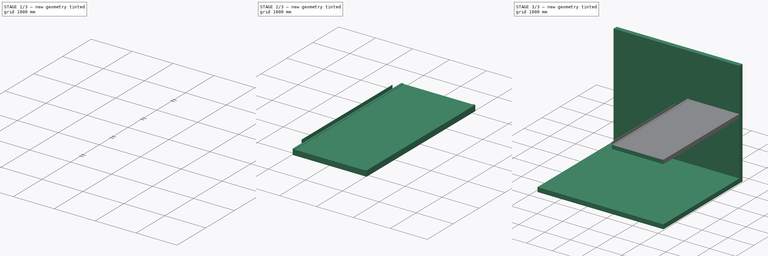
[diagram: build sequence overview — one tinted view per stage of 3, left to right]
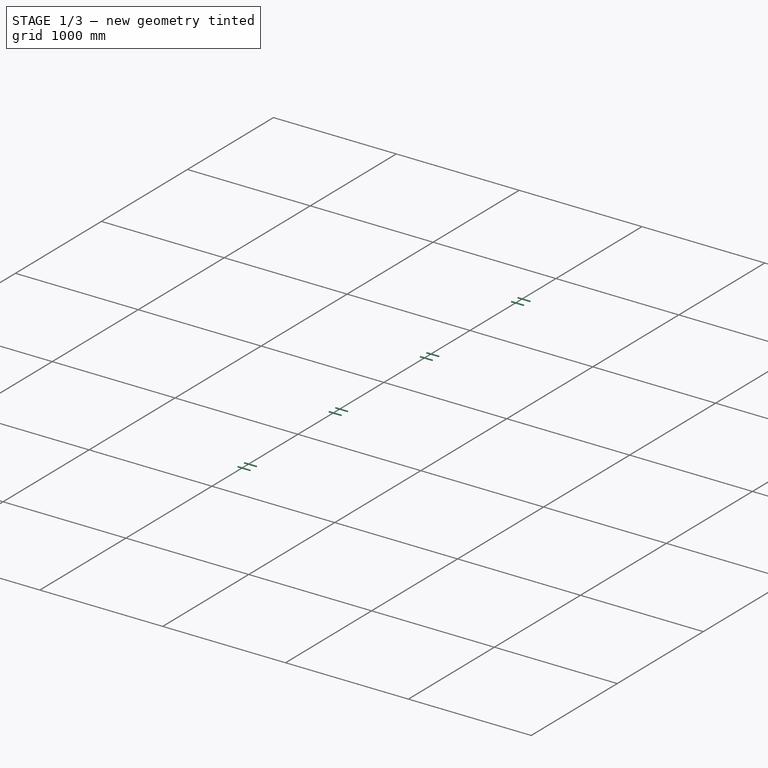
[diagram: stage 1 of 3 — iso view after this stage's code; geometry added in this stage tinted green]
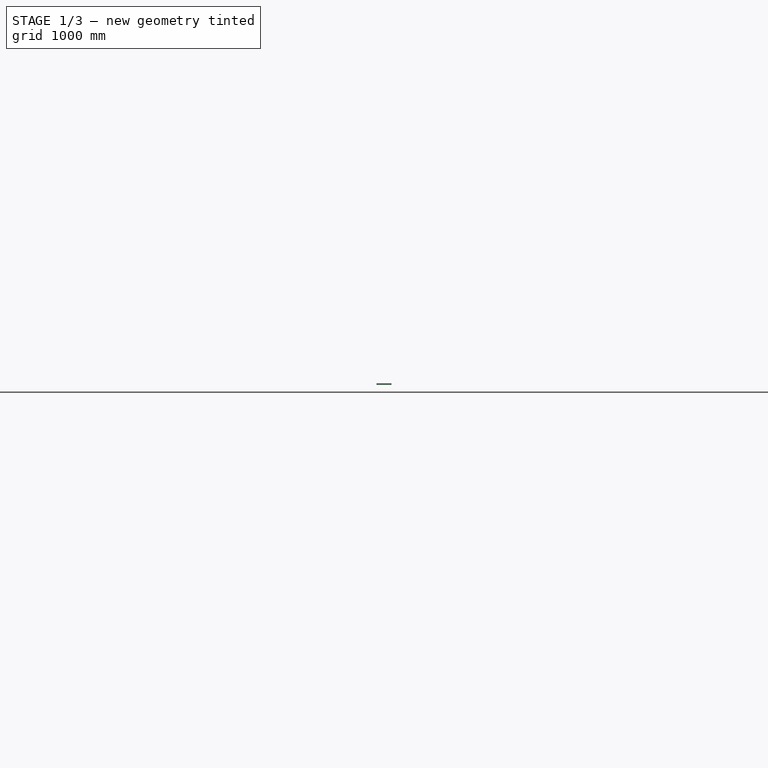
[diagram: stage 1 of 3 — front view after this stage's code; geometry added in this stage tinted green]
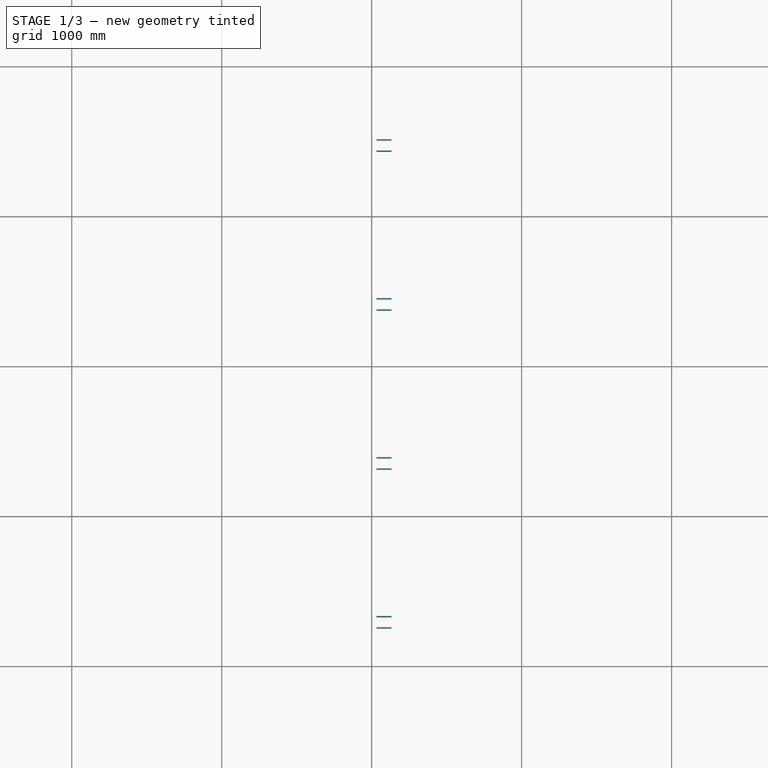
[diagram: stage 1 of 3 — top view after this stage's code; geometry added in this stage tinted green]
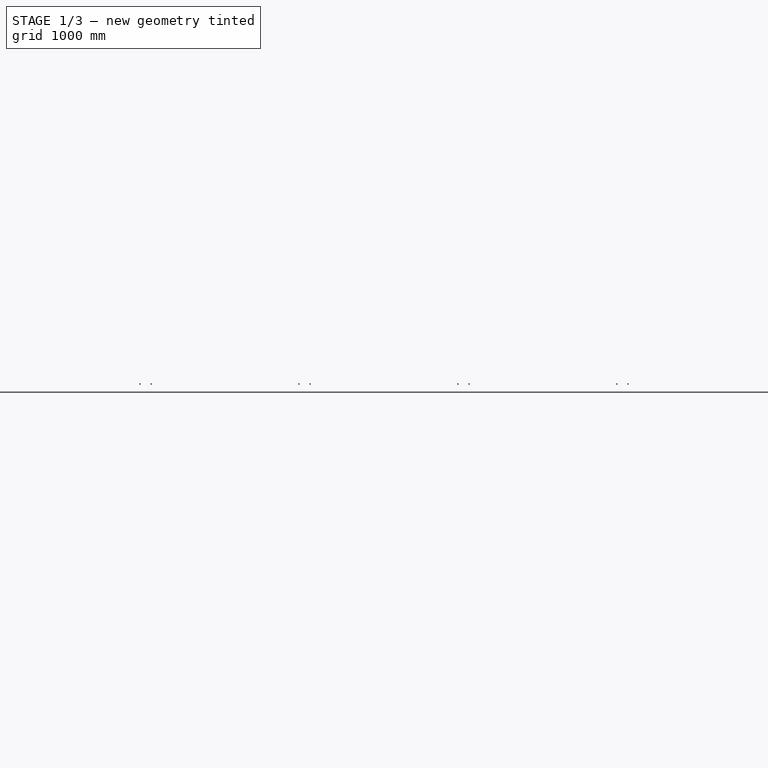
[diagram: stage 1 of 3 — right view after this stage's code; geometry added in this stage tinted green]
FCSTD DOCUMENT  (FreeCAD 0.17R11051 (Git))
Label: room
License: All rights reserved
LicenseURL: http://en.wikipedia.org/wiki/All_rights_reserved
objects: Part::Part2DObjectPython×4, Part::Extrusion×3, PartDesign::ShapeBinder×1, Sketcher::SketchObject×1, PartDesign::Pad×1, PartDesign::Body×1, App::DocumentObjectGroup×1, Part::FeaturePython×1, Part::Cut×1, Part::Compound×1
note: 15 computed .brp shape members not serialized (recipe doc carries the construction recipe); baked Part::Feature solids carry a one-line shape summary decoded from their .brp

FEATURE [PartDesign::Body] Body
  Group = -> [ShapeBinder,Sketch,Pad]
  Origin = -> BodyOrigin
  Placement = pos=(0,345,-2e-12) rot=(0,0,1;0rad)
  Tip = -> Pad
FEATURE [App::DocumentObjectGroup] Group  label="drawing"
  Group = -> [Rectangle]
FEATURE [Part::Part2DObjectPython] Circle012  # Draft 2D object (typed FeaturePython)
  FirstAngle = 0
  LastAngle = 0
  MakeFace = true
  Placement = pos=(2132,-488.5,2295) rot=(0.57735,0.57735,0.57735;2.0944rad)
  Radius = 5
FEATURE [Part::Extrusion] Extrude019
  Base = -> Circle012
  Dir = (-1,0,0)
  DirMode = 0
  FaceMakerClass = Part::FaceMakerBullseye
  LengthFwd = 100
  LengthRev = 0
  Solid = false
  Symmetric = false
FEATURE [Part::FeaturePython] Array012  # Draft array (typed FeaturePython)
  Angle = 360
  ArrayType = 0
  Axis = (0,0,1)
  Base = -> Extrude019
  Center = (0,0,0)
  Fuse = false
  IntervalAxis = (0,0,0)
  IntervalX = (0,-75,0)
  IntervalY = (0,-1060,0)
  IntervalZ = (0,0,0)
  NumberPolar = 1
  NumberX = 2
  NumberY = 4
  NumberZ = 1
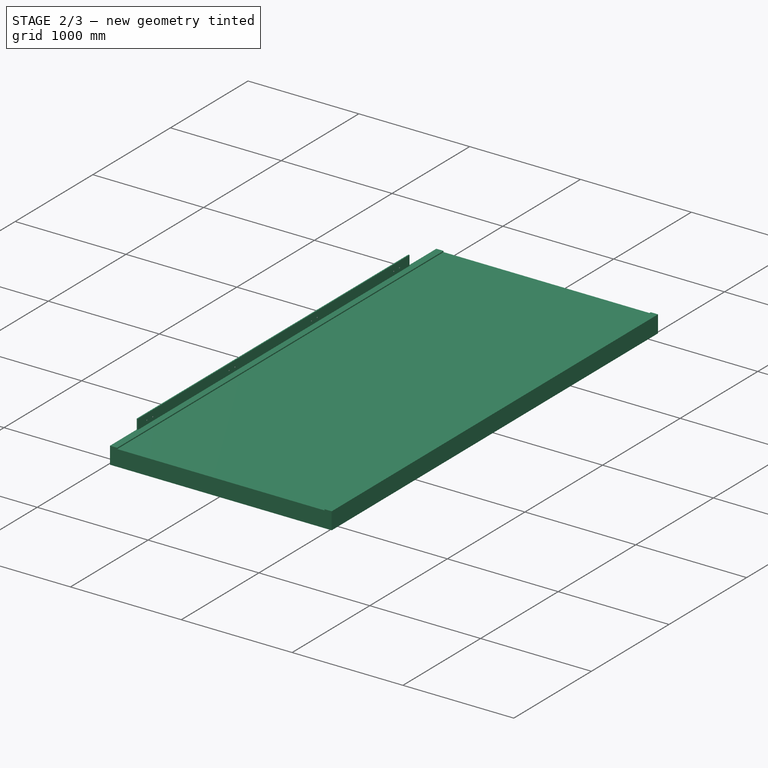
[diagram: stage 2 of 3 — iso view after this stage's code; geometry added in this stage tinted green]
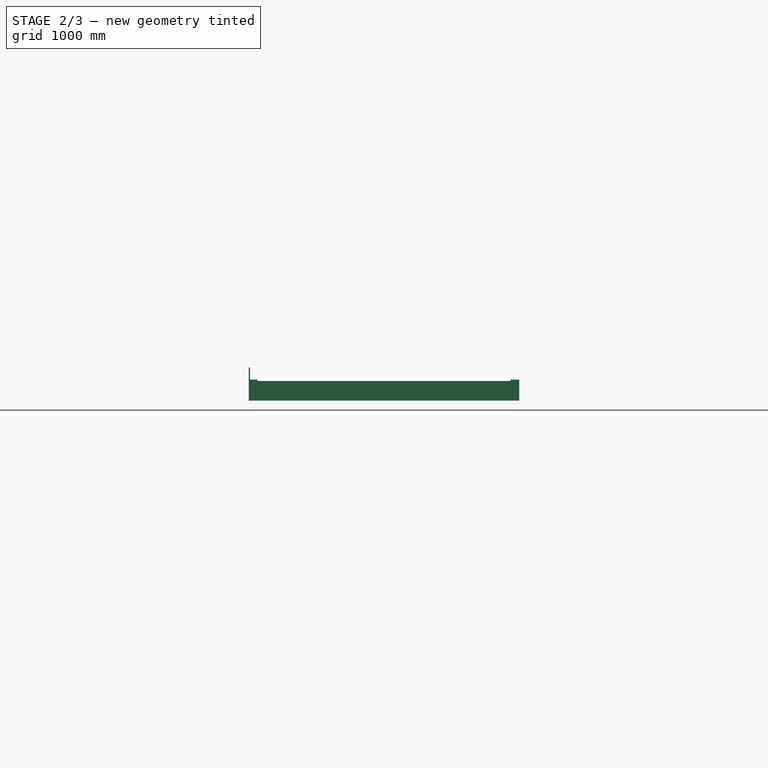
[diagram: stage 2 of 3 — front view after this stage's code; geometry added in this stage tinted green]
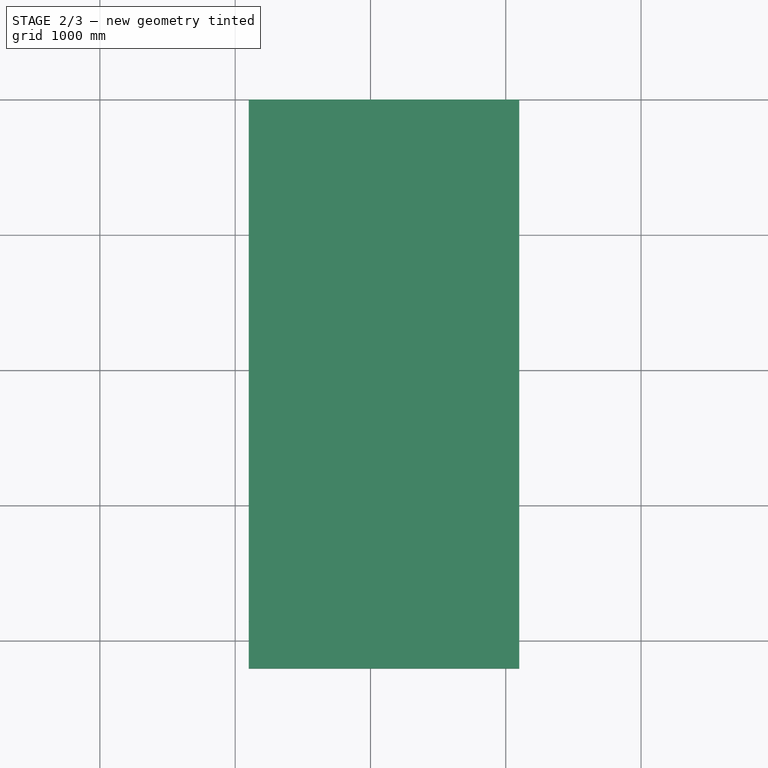
[diagram: stage 2 of 3 — top view after this stage's code; geometry added in this stage tinted green]
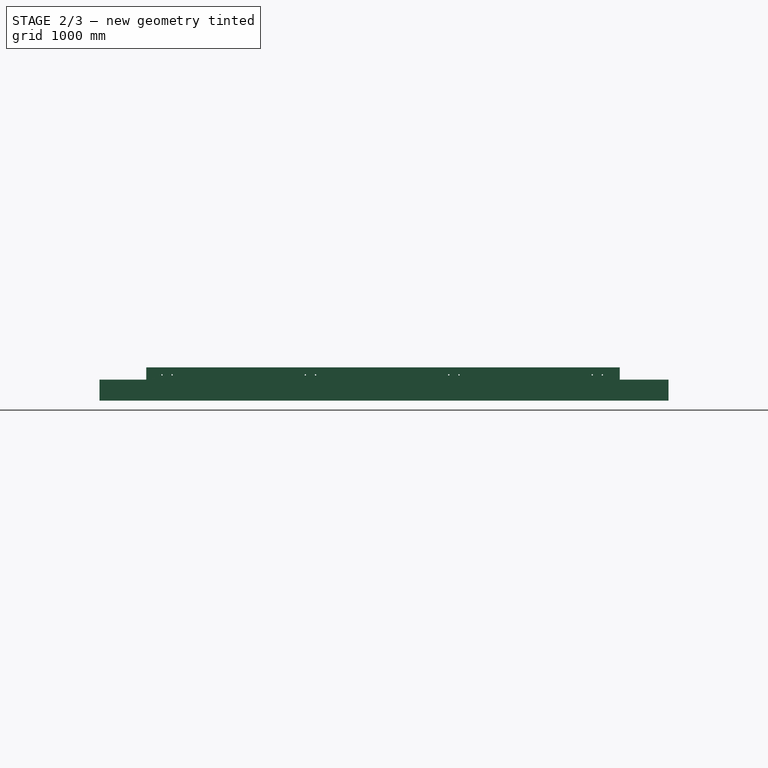
[diagram: stage 2 of 3 — right view after this stage's code; geometry added in this stage tinted green]
FEATURE [Part::Part2DObjectPython] Rectangle  # Draft 2D object (typed FeaturePython)
  ChamferSize = 0
  Columns = 1
  FilletRadius = 0
  Height = 155
  Length = 2000
  MakeFace = true
  Placement = pos=(2100,345,2105) rot=(1,0,0;1.5708rad)
  Rows = 1
FEATURE [Part::Part2DObjectPython] Rectangle002  # Draft 2D object (typed FeaturePython)
  ChamferSize = 0
  Columns = 1
  FilletRadius = 0
  Height = 90
  Length = 10
  MakeFace = true
  Placement = pos=(2110,-360,2260) rot=(0,0.707107,0.707107;3.14159rad)
  Rows = 1
FEATURE [Part::Extrusion] Extrude003
  Base = -> Rectangle002
  Dir = (0,-1,0)
  DirMode = 0
  FaceMakerClass = Part::FaceMakerBullseye
  LengthFwd = 3500
  LengthRev = 0
  Solid = false
  Symmetric = false
FEATURE [PartDesign::ShapeBinder] ShapeBinder
  Placement = pos=(2100,345,2105) rot=(1,0,0;1.5708rad)
  Support = -> [Rectangle]
FEATURE [Sketcher::SketchObject] Sketch
  ExternalGeometry = -> [ShapeBinder]
  MapMode = 5
  Placement = pos=(0,0,0) rot=(1,0,0;1.5708rad)
  Support = -> [XZ_Plane]
  sketch-geometry (8):
    g0: LineSegment StartX=2100 StartY=2260 StartZ=0 EndX=2100 EndY=2105 EndZ=0
    g1: LineSegment StartX=2100 StartY=2105 StartZ=0 EndX=4100 EndY=2105 EndZ=0
    g2: LineSegment StartX=4100 StartY=2105 StartZ=0 EndX=4100 EndY=2260 EndZ=0
    g3: LineSegment StartX=4100 StartY=2260 StartZ=0 EndX=4035 EndY=2260 EndZ=0
    g4: LineSegment StartX=4035 StartY=2260 StartZ=0 EndX=4035 EndY=2250 EndZ=0
    g5: LineSegment StartX=4035 StartY=2250 StartZ=0 EndX=2165 EndY=2250 EndZ=0
    g6: LineSegment StartX=2165 StartY=2250 StartZ=0 EndX=2165 EndY=2260 EndZ=0
    g7: LineSegment StartX=2165 StartY=2260 StartZ=0 EndX=2100 EndY=2260 EndZ=0
  constraints (22):
    c: Coincident(g-6,g0)
    c: Coincident(g0,g-6)
    c: Coincident(g0,g1)
    c: Coincident(g1,g-5)
    c: Coincident(g1,g2)
    c: Coincident(g2,g-4)
    c: Coincident(g2,g3)
    c: PointOnObject(g3,g-3)
    c: Coincident(g3,g4)
    c: Coincident(g4,g5)
    c: Horizontal(g5)
    c: Coincident(g5,g6)
    c: PointOnObject(g6,g-3)
    c: Coincident(g6,g7)
    c: Coincident(g7,g0)
    c: Horizontal(g7)
    c: Vertical(g6)
    c: DistanceY(g6,g6) = 10
    c: DistanceX(g7,g7) = 65
    c: Vertical(g4)
    c: Equal(g4,g6)
    c: Equal(g7,g3)
FEATURE [PartDesign::Pad] Pad
  Length = 4205
  Length2 = 100
  Placement = pos=(0,0,0) rot=(1,0,0;1.5708rad)
  Profile = -> Sketch
  Type = 0
FEATURE [Part::Cut] Cut
  Base = -> Extrude003
  Tool = -> Array012
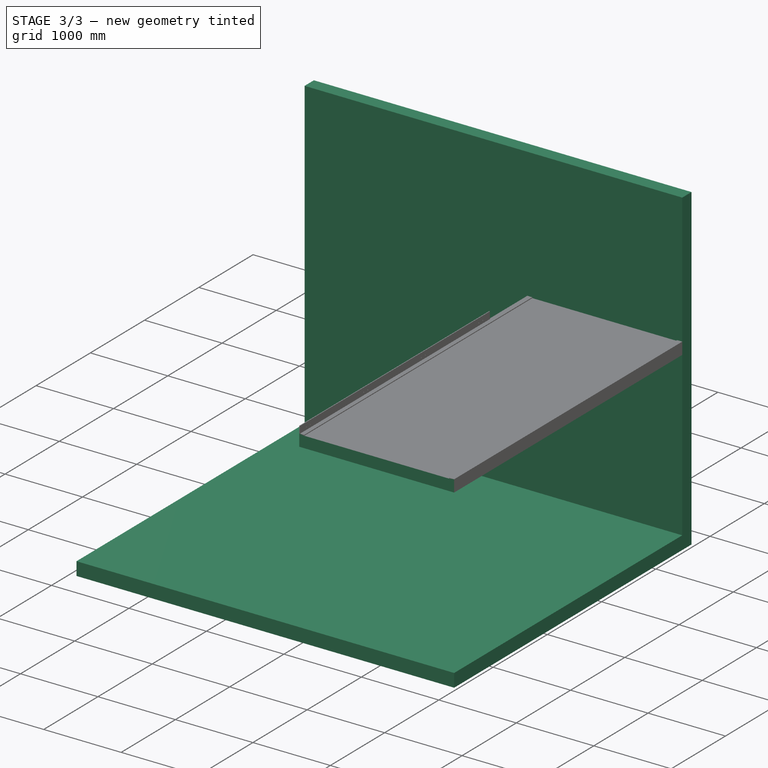
[diagram: stage 3 of 3 — iso view after this stage's code; geometry added in this stage tinted green]
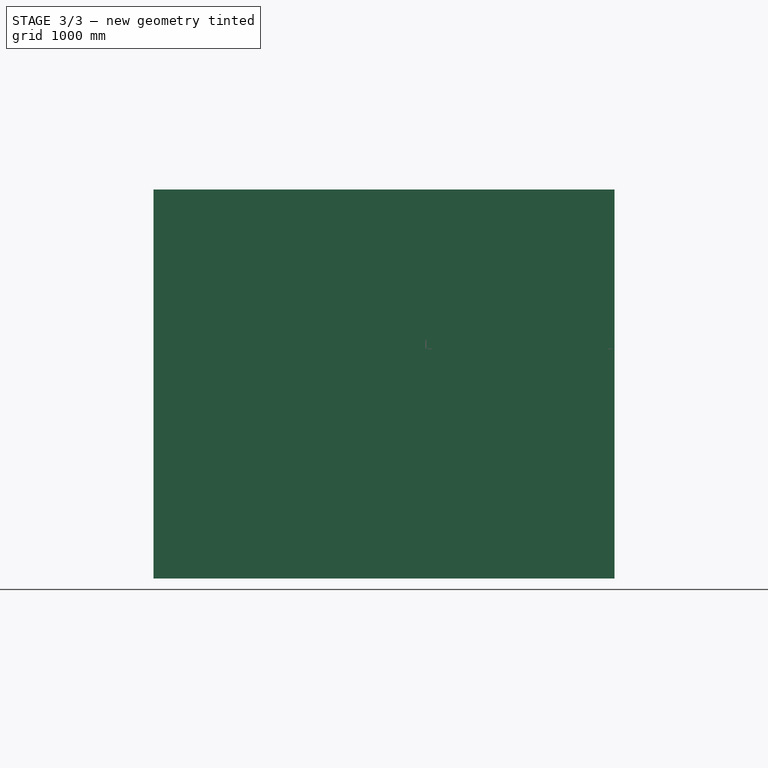
[diagram: stage 3 of 3 — front view after this stage's code; geometry added in this stage tinted green]
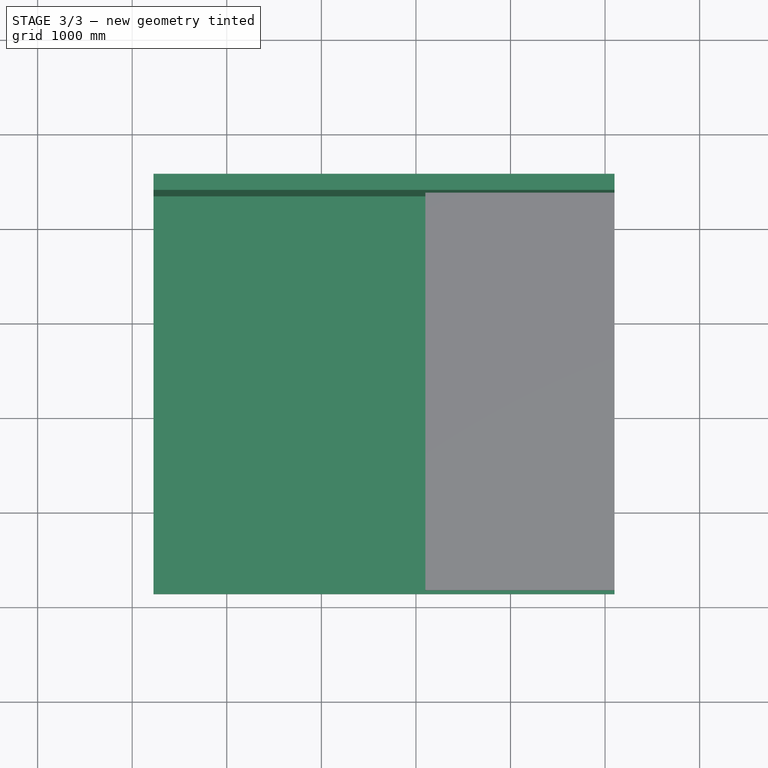
[diagram: stage 3 of 3 — top view after this stage's code; geometry added in this stage tinted green]
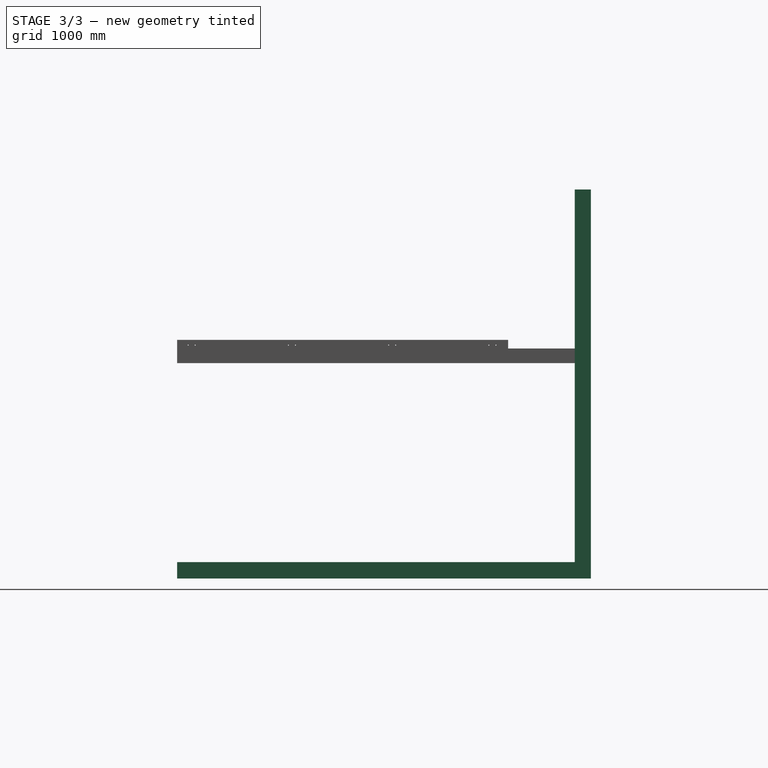
[diagram: stage 3 of 3 — right view after this stage's code; geometry added in this stage tinted green]
FEATURE [Part::Part2DObjectPython] DWire  # Draft 2D object (typed FeaturePython)
  ChamferSize = 0
  Closed = true
  End = (-775,515.42,3940)
  FilletRadius = 0
  Length = 16975.1
  MakeFace = true
  Placement = pos=(-775,0,0) rot=(0,0,1;0rad)
  Points = (6) [(0,345,3940),(0,345,0),(0,-3860,0),(0,-3860,-172.11),(0,515.42,-172.11),(0,515.42,3940)]
  Start = (-775,345,3940)
  Subdivisions = 0
FEATURE [Part::Extrusion] Extrude  label="floor_wall"
  Base = -> DWire
  Dir = (1,0,0)
  DirMode = 0
  FaceMakerClass = Part::FaceMakerBullseye
  LengthFwd = 4875
  LengthRev = 0
  Solid = false
  Symmetric = false
FEATURE [Part::Compound] Compound
  Links = -> [Cut,Body,Extrude]
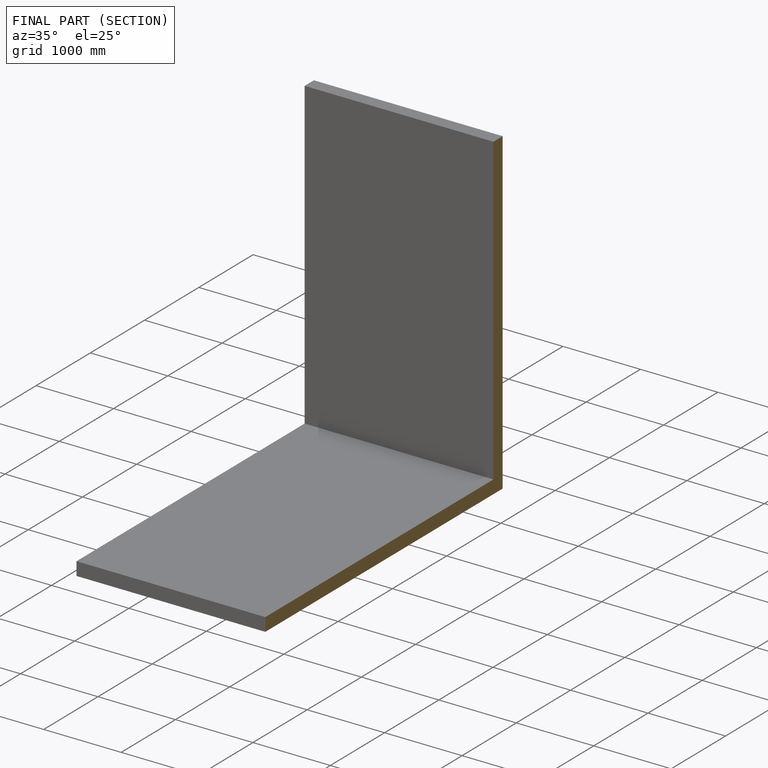
[diagram: finished part — half-section view (interior)]
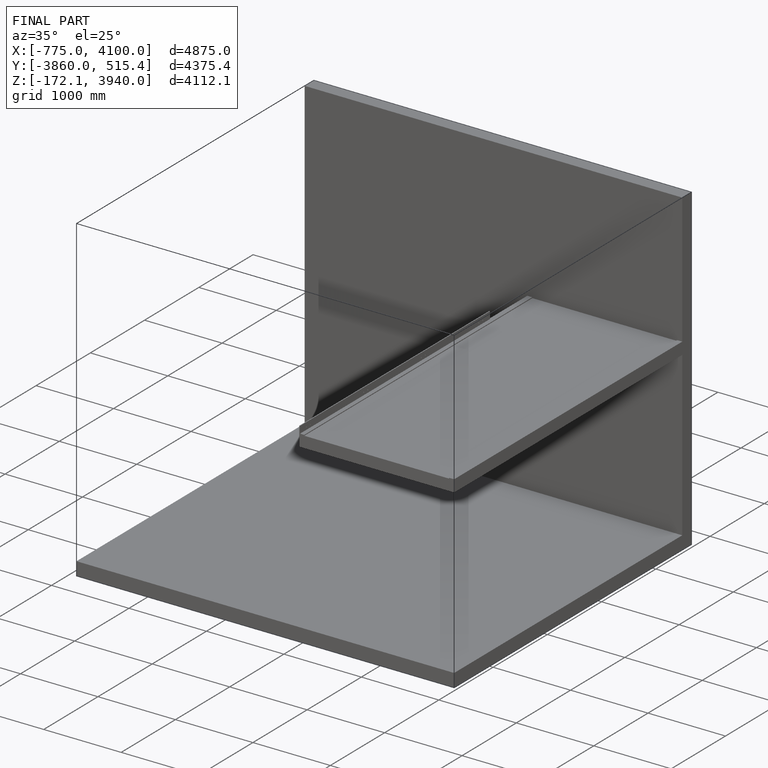
[diagram: finished part — iso view with bounding-box wireframe]
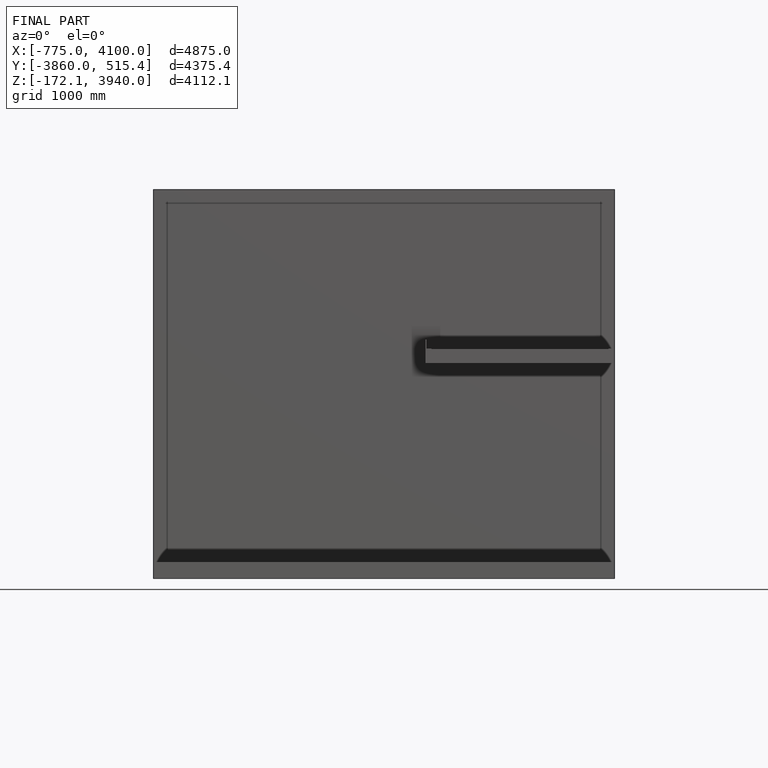
[diagram: finished part — front view with bounding-box wireframe]
